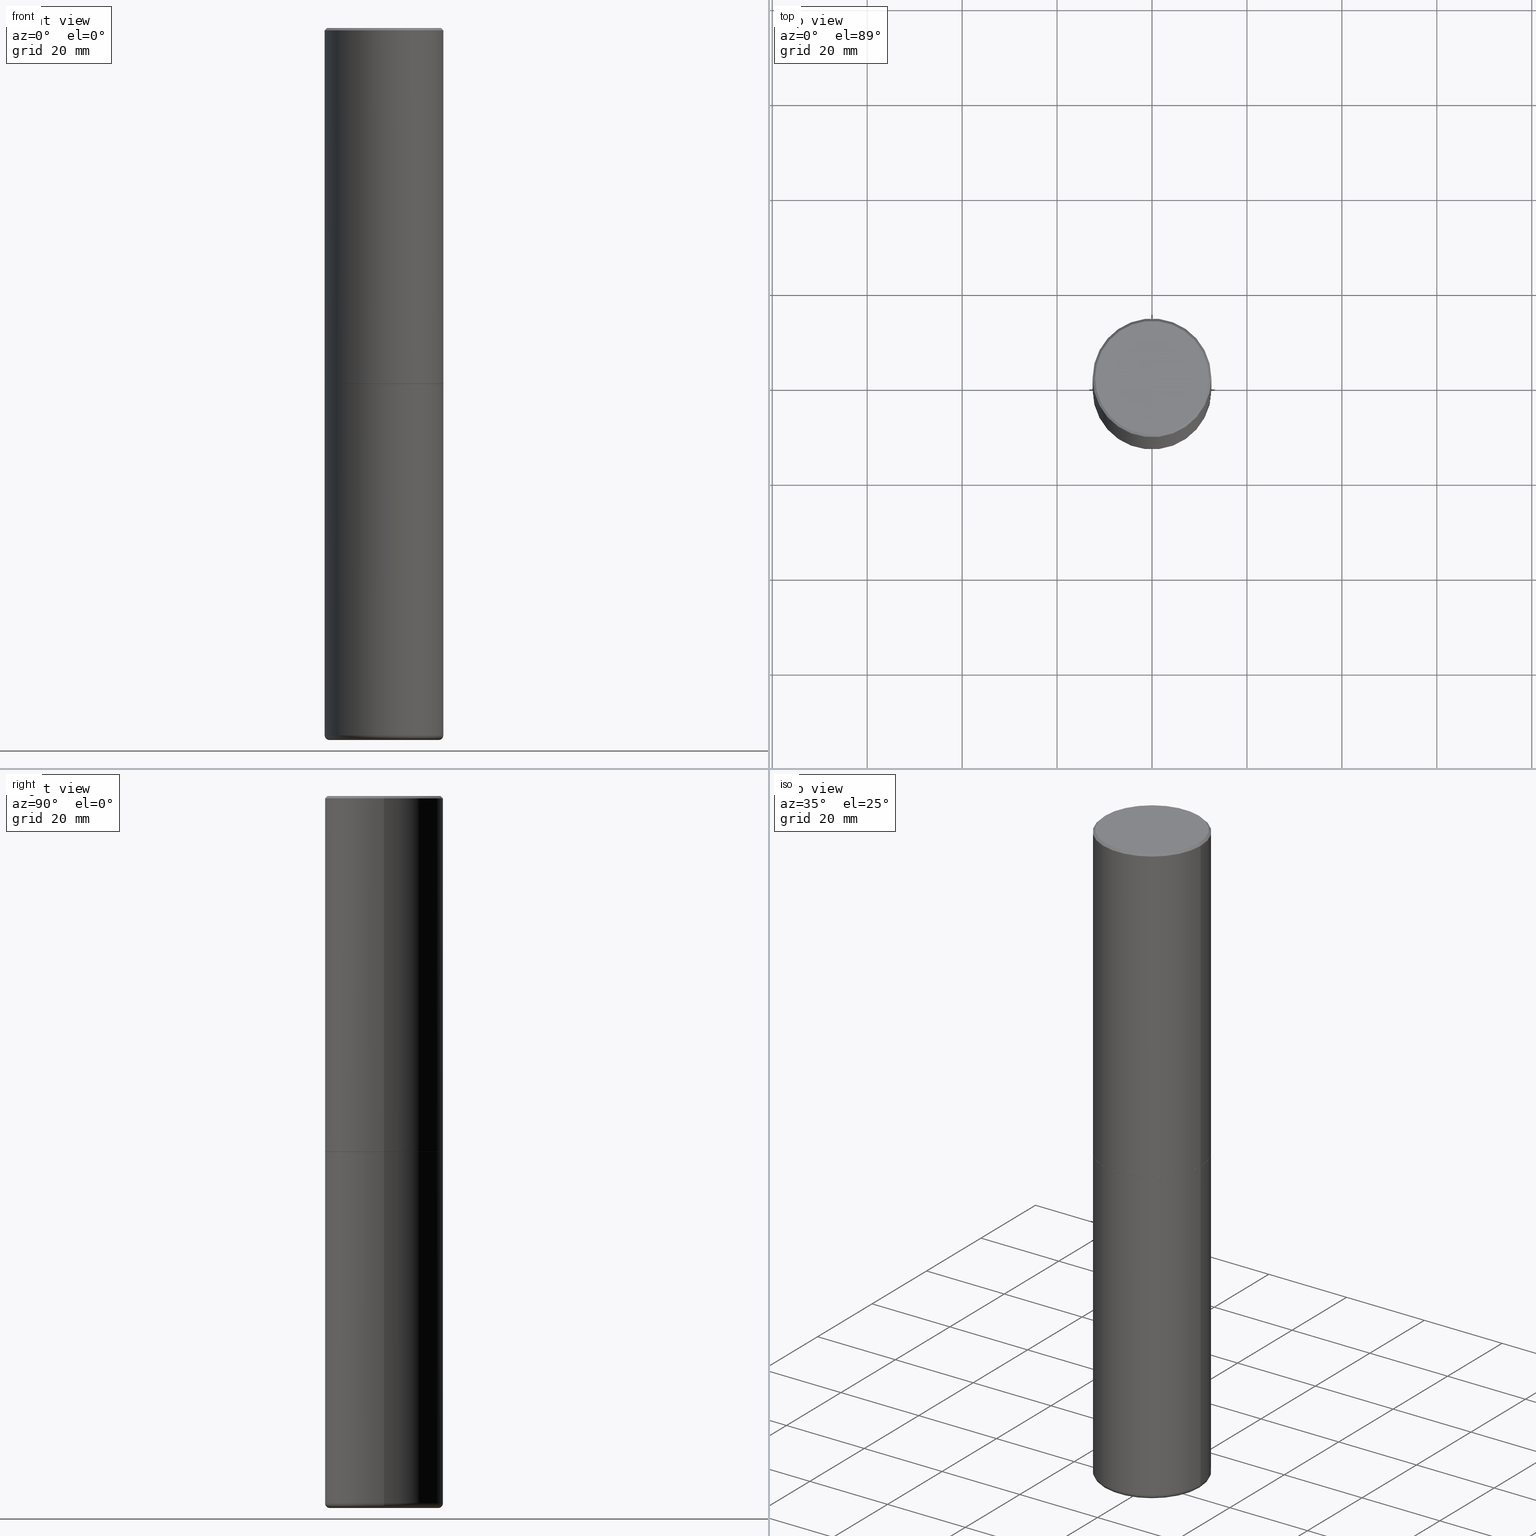
[diagram: canonical four-view strip — front | top / right | iso, engineering-drawing reading convention]
A machine part, canonical four-view strip (front | top / right | iso — engineering-drawing reading convention). The complete STEP part file that produces these views, byte-faithful:
ISO-10303-21;
HEADER;
FILE_DESCRIPTION (( 'STEP AP203' ),
    '1' );
FILE_NAME ('74887.STEP',
    '2024-05-02T19:27:21',
    ( '' ),
    ( '' ),
    'SwSTEP 2.0',
    'SolidWorks 2023',
    '' );
FILE_SCHEMA (( 'CONFIG_CONTROL_DESIGN' ));
ENDSEC;

DATA;
#1 = CARTESIAN_POINT ( 'NONE',  ( 7.220735744022852519E-29, -1.030929694920215502E-14, -2.952700000000000102 ) ) ;
#2 = SECURITY_CLASSIFICATION ( '', '', #336 ) ;
#3 = DIRECTION ( 'NONE',  ( -2.445468806185136597E-29, 3.491481338843145583E-15, 1.000000000000000000 ) ) ;
#4 = PERSON_AND_ORGANIZATION ( #216, #193 ) ;
#5 = DATE_AND_TIME ( #131, #159 ) ;
#6 = CARTESIAN_POINT ( 'NONE',  ( 0.4921500000000000319, -3.446223716380123138E-15, -0.02000000000000010797 ) ) ;
#7 = APPROVAL ( #357, 'UNSPECIFIED' ) ;
#8 = DIRECTION ( 'NONE',  ( 1.000000000000000000, -6.982962677686265922E-15, 0.000000000000000000 ) ) ;
#9 = DIRECTION ( 'NONE',  ( 0.000000000000000000, 0.000000000000000000, 1.000000000000000000 ) ) ;
#10 = CIRCLE ( 'NONE', #192, 0.4921500000000000319 ) ;
#11 = AXIS2_PLACEMENT_3D ( 'NONE', #286, #346, #257 ) ;
#12 = ADVANCED_FACE ( 'NONE', ( #318 ), #151, .T. ) ;
#13 = DATE_AND_TIME ( #269, #134 ) ;
#14 = LINE ( 'NONE', #284, #296 ) ;
#15 = CC_DESIGN_DATE_AND_TIME_ASSIGNMENT ( #5, #132, ( #366 ) ) ;
#16 = CYLINDRICAL_SURFACE ( 'NONE', #273, 0.4921500000000001984 ) ;
#17 = CONICAL_SURFACE ( 'NONE', #39, 0.4911499999999999755, 0.7853981633977213939 ) ;
#18 = DIRECTION ( 'NONE',  ( -2.445468806185136597E-29, 3.491481338843145583E-15, 1.000000000000000000 ) ) ;
#19 = APPROVAL_PERSON_ORGANIZATION ( #136, #291, #171 ) ;
#20 = CIRCLE ( 'NONE', #74, 0.03940000000000040692 ) ;
#21 = CALENDAR_DATE ( 2024, 2, 5 ) ;
#22 = CC_DESIGN_PERSON_AND_ORGANIZATION_ASSIGNMENT ( #393, #100, ( #211 ) ) ;
#23 = DIRECTION ( 'NONE',  ( 1.000000000000000000, -6.982962677686269077E-15, 0.000000000000000000 ) ) ;
#24 = ORIENTED_EDGE ( 'NONE', *, *, #162, .T. ) ;
#25 = CARTESIAN_POINT ( 'NONE',  ( 0.4527499999999999858, -2.364291503411023483E-14, -5.866100000000000314 ) ) ;
#26 = DIRECTION ( 'NONE',  ( 2.438088387897960049E-29, -3.491481338843145188E-15, -1.000000000000000000 ) ) ;
#27 = VERTEX_POINT ( 'NONE', #185 ) ;
#28 = ORIENTED_EDGE ( 'NONE', *, *, #80, .F. ) ;
#29 = AXIS2_PLACEMENT_3D ( 'NONE', #145, #119, #314 ) ;
#30 = AXIS2_PLACEMENT_3D ( 'NONE', #356, #294, #88 ) ;
#31 = DIRECTION ( 'NONE',  ( -2.445468806185136597E-29, 3.491481338843145583E-15, 1.000000000000000000 ) ) ;
#32 = DIRECTION ( 'NONE',  ( 2.438088387897960049E-29, -3.491481338843145188E-15, -1.000000000000000000 ) ) ;
#33 = VERTEX_POINT ( 'NONE', #6 ) ;
#34 = EDGE_CURVE ( 'NONE', #275, #89, #14, .T. ) ;
#35 = DIRECTION ( 'NONE',  ( -2.445468806185136597E-29, 3.491481338843145583E-15, 1.000000000000000000 ) ) ;
#36 = APPLICATION_CONTEXT ( 'configuration controlled 3d designs of mechanical parts and assemblies' ) ;
#37 = LINE ( 'NONE', #223, #174 ) ;
#38 = ORIENTED_EDGE ( 'NONE', *, *, #162, .F. ) ;
#39 = AXIS2_PLACEMENT_3D ( 'NONE', #59, #207, #53 ) ;
#40 = EDGE_CURVE ( 'NONE', #313, #27, #279, .T. ) ;
#41 = CARTESIAN_POINT ( 'NONE',  ( 3.297005828269569180E-15, 0.4721499999999997921, -1.507642001961476820E-15 ) ) ;
#42 = DIRECTION ( 'NONE',  ( -2.445468806185136597E-29, 3.491481338843145583E-15, 1.000000000000000000 ) ) ;
#43 = FACE_OUTER_BOUND ( 'NONE', #238, .T. ) ;
#44 = APPLICATION_CONTEXT ( 'configuration controlled 3d designs of mechanical parts and assemblies' ) ;
#45 = AXIS2_PLACEMENT_3D ( 'NONE', #146, #384, #91 ) ;
#46 = LOCAL_TIME ( 15, 27, 21.00000000000000000, #405 ) ;
#47 = EDGE_LOOP ( 'NONE', ( #316, #397 ) ) ;
#48 =( LENGTH_UNIT ( ) NAMED_UNIT ( * ) SI_UNIT ( $, .METRE. ) );
#49 = DIRECTION ( 'NONE',  ( 1.000000000000000000, -6.982962677686265133E-15, 0.000000000000000000 ) ) ;
#50 = COORDINATED_UNIVERSAL_TIME_OFFSET ( 5, 0, .BEHIND. ) ;
#51 = CARTESIAN_POINT ( 'NONE',  ( -0.4911499999999999755, -6.819466302516422338E-15, -2.952700000000000102 ) ) ;
#52 = ORIENTED_EDGE ( 'NONE', *, *, #147, .T. ) ;
#53 = DIRECTION ( 'NONE',  ( 1.000000000000000000, -6.982962677686268288E-15, 0.000000000000000000 ) ) ;
#54 = AXIS2_PLACEMENT_3D ( 'NONE', #118, #288, #285 ) ;
#55 = ORIENTED_EDGE ( 'NONE', *, *, #416, .F. ) ;
#56 = PERSON_AND_ORGANIZATION_ROLE ( 'creator' ) ;
#57 = LINE ( 'NONE', #179, #105 ) ;
#58 = ORIENTED_EDGE ( 'NONE', *, *, #270, .T. ) ;
#59 = CARTESIAN_POINT ( 'NONE',  ( 7.220735744022852519E-29, -1.030929694920215502E-14, -2.952700000000000102 ) ) ;
#60 = CARTESIAN_POINT ( 'NONE',  ( -0.4527499999999999858, -1.719320170906439193E-14, -5.905500000000000860 ) ) ;
#61 = EDGE_CURVE ( 'NONE', #406, #402, #10, .T. ) ;
#62 = DIRECTION ( 'NONE',  ( -2.445468806185136597E-29, 3.491481338843145583E-15, 1.000000000000000000 ) ) ;
#63 = AXIS2_PLACEMENT_3D ( 'NONE', #154, #414, #378 ) ;
#64 = CIRCLE ( 'NONE', #78, 0.4911499999999999755 ) ;
#65 = FACE_OUTER_BOUND ( 'NONE', #353, .T. ) ;
#66 = DIMENSIONAL_EXPONENTS ( 1.000000000000000000, 0.000000000000000000, 0.000000000000000000, 0.000000000000000000, 0.000000000000000000, 0.000000000000000000, 0.000000000000000000 ) ;
#67 = DIRECTION ( 'NONE',  ( -2.445468806185136597E-29, 3.491481338843145583E-15, 1.000000000000000000 ) ) ;
#68 = CARTESIAN_POINT ( 'NONE',  ( 7.220735744022852519E-29, -1.030929694920215502E-14, -2.952700000000000102 ) ) ;
#69 = ORIENTED_EDGE ( 'NONE', *, *, #34, .T. ) ;
#70 = AXIS2_PLACEMENT_3D ( 'NONE', #68, #26, #317 ) ;
#71 = PERSON_AND_ORGANIZATION_ROLE ( 'creator' ) ;
#72 = CARTESIAN_POINT ( 'NONE',  ( -0.4921499999999999764, 3.496936074043332897E-15, -2.420853904668951509E-29 ) ) ;
#73 = CIRCLE ( 'NONE', #228, 0.4921500000000000319 ) ;
#74 = AXIS2_PLACEMENT_3D ( 'NONE', #385, #92, #217 ) ;
#75 = DIRECTION ( 'NONE',  ( -2.445468806185136597E-29, 3.491481338843145583E-15, 1.000000000000000000 ) ) ;
#76 = DATE_TIME_ROLE ( 'classification_date' ) ;
#77 = CC_DESIGN_PERSON_AND_ORGANIZATION_ASSIGNMENT ( #4, #71, ( #366 ) ) ;
#78 = AXIS2_PLACEMENT_3D ( 'NONE', #330, #75, #168 ) ;
#79 = ORIENTED_EDGE ( 'NONE', *, *, #339, .F. ) ;
#80 = EDGE_CURVE ( 'NONE', #244, #391, #343, .T. ) ;
#81 = ORIENTED_EDGE ( 'NONE', *, *, #96, .F. ) ;
#82 = FACE_OUTER_BOUND ( 'NONE', #210, .T. ) ;
#83 = PERSON_AND_ORGANIZATION_ROLE ( 'classification_officer' ) ;
#84 = CARTESIAN_POINT ( 'NONE',  ( 0.4921500000000003094, -1.374247054968661252E-14, -2.951700000000000212 ) ) ;
#85 = PERSON_AND_ORGANIZATION ( #216, #193 ) ;
#86 = CIRCLE ( 'NONE', #198, 0.4921499999999999764 ) ;
#87 = FACE_OUTER_BOUND ( 'NONE', #383, .T. ) ;
#88 = DIRECTION ( 'NONE',  ( -1.000000000000000000, 6.982962677686265922E-15, -4.876176775795935793E-29 ) ) ;
#89 = VERTEX_POINT ( 'NONE', #84 ) ;
#90 = ORIENTED_EDGE ( 'NONE', *, *, #167, .T. ) ;
#91 = DIRECTION ( 'NONE',  ( 1.000000000000000000, -6.982962677686268288E-15, 4.883557194083113462E-29 ) ) ;
#92 = DIRECTION ( 'NONE',  ( 7.105427357601001859E-15, 1.000000000000000000, -3.491481338843145583E-15 ) ) ;
#93 = DIRECTION ( 'NONE',  ( -2.445468806185136877E-29, 3.491481338843145188E-15, 1.000000000000000000 ) ) ;
#94 = CIRCLE ( 'NONE', #358, 0.03940000000000040692 ) ;
#95 = CARTESIAN_POINT ( 'NONE',  ( -0.4911499999999999755, -6.814167848168199148E-15, -2.952700000000000102 ) ) ;
#96 = EDGE_CURVE ( 'NONE', #406, #250, #239, .T. ) ;
#97 = PLANE ( 'NONE',  #30 ) ;
#98 = ORIENTED_EDGE ( 'NONE', *, *, #320, .T. ) ;
#99 = VECTOR ( 'NONE', #401, 39.37007874015748143 ) ;
#100 = PERSON_AND_ORGANIZATION_ROLE ( 'design_owner' ) ;
#101 = EDGE_CURVE ( 'NONE', #275, #313, #365, .T. ) ;
#102 = APPROVAL_ROLE ( '' ) ;
#103 = CC_DESIGN_PERSON_AND_ORGANIZATION_ASSIGNMENT ( #143, #56, ( #372 ) ) ;
#104 =( CONVERSION_BASED_UNIT ( 'INCH', #362 ) LENGTH_UNIT ( ) NAMED_UNIT ( #66 ) );
#105 = VECTOR ( 'NONE', #311, 39.37007874015748143 ) ;
#106 = ORIENTED_EDGE ( 'NONE', *, *, #277, .F. ) ;
#107 = ADVANCED_FACE ( 'NONE', ( #220 ), #16, .T. ) ;
#108 = EDGE_LOOP ( 'NONE', ( #309, #241, #248, #376 ) ) ;
#109 = APPROVAL_STATUS ( 'not_yet_approved' ) ;
#110 = DIRECTION ( 'NONE',  ( -2.445468806185136597E-29, 3.491481338843145583E-15, 1.000000000000000000 ) ) ;
#111 = APPROVAL_DATE_TIME ( #299, #7 ) ;
#112 = CARTESIAN_POINT ( 'NONE',  ( 1.444171603492632494E-28, -2.061894304653819828E-14, -5.905500000000000860 ) ) ;
#113 = ORIENTED_EDGE ( 'NONE', *, *, #339, .T. ) ;
#114 = CIRCLE ( 'NONE', #11, 0.4921500000000003094 ) ;
#115 = ORIENTED_EDGE ( 'NONE', *, *, #61, .F. ) ;
#116 = APPROVAL_DATE_TIME ( #340, #144 ) ;
#117 = ORIENTED_EDGE ( 'NONE', *, *, #197, .T. ) ;
#118 = CARTESIAN_POINT ( 'NONE',  ( 4.890937612370299433E-31, -6.982962677686328587E-17, -0.02000000000000010797 ) ) ;
#119 = DIRECTION ( 'NONE',  ( -2.445468806185136597E-29, 3.491481338843145583E-15, 1.000000000000000000 ) ) ;
#120 = DIRECTION ( 'NONE',  ( -2.445468806185136877E-29, 3.491481338843145188E-15, 1.000000000000000000 ) ) ;
#121 = ORIENTED_EDGE ( 'NONE', *, *, #188, .F. ) ;
#122 = CONICAL_SURFACE ( 'NONE', #177, 0.4911499999999999755, 0.7853981633977213939 ) ;
#123 = CARTESIAN_POINT ( 'NONE',  ( 1.444171603492632494E-28, -2.061894304653819828E-14, -5.905500000000000860 ) ) ;
#124 = DIRECTION ( 'NONE',  ( -1.000000000000000000, 6.982962677686265922E-15, -4.876176775795935793E-29 ) ) ;
#125 = CARTESIAN_POINT ( 'NONE',  ( 0.000000000000000000, 0.000000000000000000, 0.000000000000000000 ) ) ;
#126 = CARTESIAN_POINT ( 'NONE',  ( 0.4921499999999999764, -1.374596203102545079E-14, -2.952700000000000102 ) ) ;
#127 = FACE_OUTER_BOUND ( 'NONE', #398, .T. ) ;
#128 = CLOSED_SHELL ( 'NONE', ( #142, #107, #400, #298, #12, #301, #396, #247 ) ) ;
#129 = DIRECTION ( 'NONE',  ( 1.000000000000000000, -6.982962677686265922E-15, 0.000000000000000000 ) ) ;
#130 = ORIENTED_EDGE ( 'NONE', *, *, #133, .T. ) ;
#131 = CALENDAR_DATE ( 2024, 2, 5 ) ;
#132 = DATE_TIME_ROLE ( 'creation_date' ) ;
#133 = EDGE_CURVE ( 'NONE', #402, #149, #153, .T. ) ;
#134 = LOCAL_TIME ( 15, 27, 21.00000000000000000, #135 ) ;
#135 = COORDINATED_UNIVERSAL_TIME_OFFSET ( 5, 0, .BEHIND. ) ;
#136 = PERSON_AND_ORGANIZATION ( #216, #193 ) ;
#137 = APPLICATION_PROTOCOL_DEFINITION ( 'international standard', 'config_control_design', 1994, #44 ) ;
#138 = ADVANCED_FACE ( 'NONE', ( #82 ), #394, .T. ) ;
#139 = CIRCLE ( 'NONE', #251, 0.4921499999999999764 ) ;
#140 = DIRECTION ( 'NONE',  ( 1.000000000000000000, -6.982962677686268288E-15, 0.000000000000000000 ) ) ;
#141 = ADVANCED_BREP_SHAPE_REPRESENTATION ( '74887', ( #371, #369, #381 ), #359 ) ;
#142 = ADVANCED_FACE ( 'NONE', ( #87 ), #17, .T. ) ;
#143 = PERSON_AND_ORGANIZATION ( #216, #193 ) ;
#144 = APPROVAL ( #109, 'UNSPECIFIED' ) ;
#145 = CARTESIAN_POINT ( 'NONE',  ( 1.434536456396262923E-28, -2.048137868178777591E-14, -5.866100000000000314 ) ) ;
#146 = CARTESIAN_POINT ( 'NONE',  ( 1.434536456396262923E-28, -2.048137868178777591E-14, -5.866100000000000314 ) ) ;
#147 = EDGE_CURVE ( 'NONE', #244, #406, #94, .T. ) ;
#148 = CARTESIAN_POINT ( 'NONE',  ( 4.890937612370299433E-31, -6.982962677686328587E-17, -0.02000000000000010797 ) ) ;
#149 = VERTEX_POINT ( 'NONE', #249 ) ;
#150 = CIRCLE ( 'NONE', #158, 0.4527499999999999858 ) ;
#151 = CYLINDRICAL_SURFACE ( 'NONE', #387, 0.4921500000000001984 ) ;
#152 = CC_DESIGN_SECURITY_CLASSIFICATION ( #2, ( #372 ) ) ;
#153 = LINE ( 'NONE', #72, #380 ) ;
#154 = CARTESIAN_POINT ( 'NONE',  ( 4.890937612370299433E-31, -6.982962677686328587E-17, -0.02000000000000010797 ) ) ;
#155 = FACE_OUTER_BOUND ( 'NONE', #108, .T. ) ;
#156 = CARTESIAN_POINT ( 'NONE',  ( 0.4911499999999999755, -1.373897906834776478E-14, -2.952700000000000102 ) ) ;
#157 = FACE_OUTER_BOUND ( 'NONE', #213, .T. ) ;
#158 = AXIS2_PLACEMENT_3D ( 'NONE', #123, #178, #307 ) ;
#159 = LOCAL_TIME ( 15, 27, 21.00000000000000000, #195 ) ;
#160 = DIRECTION ( 'NONE',  ( -2.445468806185136597E-29, 3.491481338843145583E-15, 1.000000000000000000 ) ) ;
#161 = PLANE ( 'NONE',  #165 ) ;
#162 = EDGE_CURVE ( 'NONE', #391, #244, #150, .T. ) ;
#163 = DIRECTION ( 'NONE',  ( 1.000000000000000000, -6.982962677686265133E-15, 0.000000000000000000 ) ) ;
#164 = VECTOR ( 'NONE', #341, 39.37007874015748143 ) ;
#165 = AXIS2_PLACEMENT_3D ( 'NONE', #367, #392, #233 ) ;
#166 =( NAMED_UNIT ( * ) PLANE_ANGLE_UNIT ( ) SI_UNIT ( $, .RADIAN. ) );
#167 = EDGE_CURVE ( 'NONE', #281, #33, #235, .T. ) ;
#168 = DIRECTION ( 'NONE',  ( 1.000000000000000000, -6.982962677686268288E-15, 0.000000000000000000 ) ) ;
#169 = ORIENTED_EDGE ( 'NONE', *, *, #197, .F. ) ;
#170 = DIRECTION ( 'NONE',  ( -2.445468806185136877E-29, 3.491481338843145188E-15, 1.000000000000000000 ) ) ;
#171 = APPROVAL_ROLE ( '' ) ;
#172 = CC_DESIGN_PERSON_AND_ORGANIZATION_ASSIGNMENT ( #246, #83, ( #2 ) ) ;
#173 = PRODUCT_DEFINITION_SHAPE ( 'NONE', 'NONE',  #366 ) ;
#174 = VECTOR ( 'NONE', #93, 39.37007874015748143 ) ;
#175 = ADVANCED_FACE ( 'NONE', ( #256 ), #293, .T. ) ;
#176 = AXIS2_PLACEMENT_3D ( 'NONE', #302, #18, #140 ) ;
#177 = AXIS2_PLACEMENT_3D ( 'NONE', #292, #3, #187 ) ;
#178 = DIRECTION ( 'NONE',  ( -2.445468806185136597E-29, 3.491481338843145583E-15, 1.000000000000000000 ) ) ;
#179 = CARTESIAN_POINT ( 'NONE',  ( 0.4921500000000000319, -3.446223716380123138E-15, -0.02000000000000010797 ) ) ;
#180 = EDGE_LOOP ( 'NONE', ( #334, #280, #69, #218 ) ) ;
#181 = CARTESIAN_POINT ( 'NONE',  ( 7.220735744022852519E-29, -1.030929694920215502E-14, -2.952700000000000102 ) ) ;
#182 = CYLINDRICAL_SURFACE ( 'NONE', #404, 0.4921499999999999764 ) ;
#183 = ORIENTED_EDGE ( 'NONE', *, *, #212, .F. ) ;
#184 = AXIS2_PLACEMENT_3D ( 'NONE', #347, #160, #417 ) ;
#185 = CARTESIAN_POINT ( 'NONE',  ( -0.4921500000000003094, -1.690881473276752982E-15, -2.951700000000000212 ) ) ;
#186 = APPROVAL_PERSON_ORGANIZATION ( #226, #7, #102 ) ;
#187 = DIRECTION ( 'NONE',  ( 1.000000000000000000, -6.982962677686268288E-15, 0.000000000000000000 ) ) ;
#188 = EDGE_CURVE ( 'NONE', #250, #149, #139, .T. ) ;
#189 = FACE_OUTER_BOUND ( 'NONE', #338, .T. ) ;
#190 = DIRECTION ( 'NONE',  ( 1.000000000000000000, -6.982962677686265922E-15, 4.876176775795935793E-29 ) ) ;
#191 = ORIENTED_EDGE ( 'NONE', *, *, #379, .T. ) ;
#192 = AXIS2_PLACEMENT_3D ( 'NONE', #333, #206, #49 ) ;
#193 = ORGANIZATION ( 'UNSPECIFIED', 'UNSPECIFIED', '' ) ;
#194 = CARTESIAN_POINT ( 'NONE',  ( 0.4921500000000002539, -2.391804376361107326E-14, -5.866100000000000314 ) ) ;
#195 = COORDINATED_UNIVERSAL_TIME_OFFSET ( 5, 0, .BEHIND. ) ;
#196 = CALENDAR_DATE ( 2024, 2, 5 ) ;
#197 = EDGE_CURVE ( 'NONE', #33, #281, #262, .T. ) ;
#198 = AXIS2_PLACEMENT_3D ( 'NONE', #1, #266, #8 ) ;
#199 = CC_DESIGN_APPROVAL ( #291, ( #366 ) ) ;
#200 = CARTESIAN_POINT ( 'NONE',  ( -0.4921500000000002539, -1.698444260774444222E-14, -5.866100000000000314 ) ) ;
#201 = ORIENTED_EDGE ( 'NONE', *, *, #40, .T. ) ;
#202 = DIRECTION ( 'NONE',  ( -1.000000000000000000, 6.982962677686265922E-15, 0.000000000000000000 ) ) ;
#203 = SHAPE_DEFINITION_REPRESENTATION ( #173, #141 ) ;
#204 = AXIS2_PLACEMENT_3D ( 'NONE', #415, #35, #129 ) ;
#205 = EDGE_CURVE ( 'NONE', #149, #250, #86, .T. ) ;
#206 = DIRECTION ( 'NONE',  ( -2.445468806185136597E-29, 3.491481338843145583E-15, 1.000000000000000000 ) ) ;
#207 = DIRECTION ( 'NONE',  ( -2.445468806185136597E-29, 3.491481338843145583E-15, 1.000000000000000000 ) ) ;
#208 = APPROVAL_ROLE ( '' ) ;
#209 = CARTESIAN_POINT ( 'NONE',  ( 0.4921499999999999764, -3.436665081823295777E-15, 2.399810400207969603E-29 ) ) ;
#210 = EDGE_LOOP ( 'NONE', ( #255, #191, #115, #323 ) ) ;
#211 = PRODUCT ( '74887', '74887', '', ( #272 ) ) ;
#212 = EDGE_CURVE ( 'NONE', #412, #281, #364, .T. ) ;
#213 = EDGE_LOOP ( 'NONE', ( #375, #130, #121, #81 ) ) ;
#214 = CARTESIAN_POINT ( 'NONE',  ( 0.000000000000000000, 0.000000000000000000, 0.000000000000000000 ) ) ;
#215 = ORIENTED_EDGE ( 'NONE', *, *, #374, .T. ) ;
#216 = PERSON ( 'UNSPECIFIED', 'UNSPECIFIED', 'UNSPECIFIED', ('UNSPECIFIED'), ('UNSPECIFIED'), ('UNSPECIFIED') ) ;
#217 = DIRECTION ( 'NONE',  ( -1.000000000000000000, 7.105427357601001859E-15, 0.000000000000000000 ) ) ;
#218 = ORIENTED_EDGE ( 'NONE', *, *, #320, .F. ) ;
#219 = DIRECTION ( 'NONE',  ( 1.000000000000000000, -6.982962677686265922E-15, 4.882029041999364017E-29 ) ) ;
#220 = FACE_OUTER_BOUND ( 'NONE', #368, .T. ) ;
#221 = CONICAL_SURFACE ( 'NONE', #329, 0.4921500000000000319, 0.7853981633974452814 ) ;
#222 = LOCAL_TIME ( 15, 27, 21.00000000000000000, #326 ) ;
#223 = CARTESIAN_POINT ( 'NONE',  ( -0.4921500000000001984, 3.496936074043334475E-15, -2.420853904668952630E-29 ) ) ;
#224 = LINE ( 'NONE', #260, #297 ) ;
#225 = EDGE_CURVE ( 'NONE', #402, #406, #73, .T. ) ;
#226 = PERSON_AND_ORGANIZATION ( #216, #193 ) ;
#227 = DIRECTION ( 'NONE',  ( -0.7071067811865453523, 2.468850131082234184E-15, -0.7071067811865496822 ) ) ;
#228 = AXIS2_PLACEMENT_3D ( 'NONE', #303, #335, #163 ) ;
#229 = LOCAL_TIME ( 15, 27, 21.00000000000000000, #50 ) ;
#231 = APPROVAL_DATE_TIME ( #13, #291 ) ;
#230 = CC_DESIGN_PERSON_AND_ORGANIZATION_ASSIGNMENT ( #377, #337, ( #372 ) ) ;
#232 = UNCERTAINTY_MEASURE_WITH_UNIT (LENGTH_MEASURE( 1.000000000000000082E-05 ), #104, 'distance_accuracy_value', 'NONE');
#233 = DIRECTION ( 'NONE',  ( 1.000000000000000000, -6.982962677686265922E-15, 4.876176775795935793E-29 ) ) ;
#234 = CC_DESIGN_DATE_AND_TIME_ASSIGNMENT ( #373, #76, ( #2 ) ) ;
#235 = CIRCLE ( 'NONE', #54, 0.4921500000000000319 ) ;
#236 = ORIENTED_EDGE ( 'NONE', *, *, #354, .F. ) ;
#237 = CARTESIAN_POINT ( 'NONE',  ( -0.4721499999999997921, 3.331920641658001618E-15, 2.817218243466039531E-16 ) ) ;
#238 = EDGE_LOOP ( 'NONE', ( #236, #215, #117, #183 ) ) ;
#239 = LINE ( 'NONE', #209, #164 ) ;
#240 = ADVANCED_FACE ( 'NONE', ( #322 ), #315, .F. ) ;
#241 = ORIENTED_EDGE ( 'NONE', *, *, #225, .T. ) ;
#242 = AXIS2_PLACEMENT_3D ( 'NONE', #112, #110, #23 ) ;
#243 = DIRECTION ( 'NONE',  ( 0.7071067811867406405, -2.468850131084279700E-15, 0.7071067811863543939 ) ) ;
#244 = VERTEX_POINT ( 'NONE', #352 ) ;
#245 = ORIENTED_EDGE ( 'NONE', *, *, #277, .T. ) ;
#246 = PERSON_AND_ORGANIZATION ( #216, #193 ) ;
#247 = ADVANCED_FACE ( 'NONE', ( #65 ), #411, .F. ) ;
#248 = ORIENTED_EDGE ( 'NONE', *, *, #96, .T. ) ;
#249 = CARTESIAN_POINT ( 'NONE',  ( -0.4921499999999999764, -1.189840174145163414E-14, -2.952700000000000102 ) ) ;
#250 = VERTEX_POINT ( 'NONE', #126 ) ;
#251 = AXIS2_PLACEMENT_3D ( 'NONE', #181, #31, #407 ) ;
#252 = CC_DESIGN_APPROVAL ( #144, ( #2 ) ) ;
#253 = CYLINDRICAL_SURFACE ( 'NONE', #184, 0.4921499999999999764 ) ;
#254 = ORIENTED_EDGE ( 'NONE', *, *, #34, .F. ) ;
#255 = ORIENTED_EDGE ( 'NONE', *, *, #80, .T. ) ;
#256 = FACE_OUTER_BOUND ( 'NONE', #349, .T. ) ;
#257 = DIRECTION ( 'NONE',  ( 1.000000000000000000, -6.982962677686265922E-15, 0.000000000000000000 ) ) ;
#258 = DIRECTION ( 'NONE',  ( 1.000000000000000000, -6.982962677686266711E-15, 4.876176775795935232E-29 ) ) ;
#259 = DIRECTION ( 'NONE',  ( -6.982962677686266711E-15, -1.000000000000000000, 3.491481338843145583E-15 ) ) ;
#260 = CARTESIAN_POINT ( 'NONE',  ( 0.4921500000000001984, -3.436665081823297354E-15, 2.399810400207970443E-29 ) ) ;
#261 = CARTESIAN_POINT ( 'NONE',  ( -6.889419334612450925E-45, 9.836264924510951028E-31, 2.817218243466271259E-16 ) ) ;
#262 = CIRCLE ( 'NONE', #63, 0.4921500000000000319 ) ;
#263 = ORIENTED_EDGE ( 'NONE', *, *, #225, .F. ) ;
#264 = CARTESIAN_POINT ( 'NONE',  ( 0.4721499999999997921, -3.342703923013974974E-15, 2.817218243466503973E-16 ) ) ;
#265 = FACE_OUTER_BOUND ( 'NONE', #319, .T. ) ;
#266 = DIRECTION ( 'NONE',  ( -2.445468806185136597E-29, 3.491481338843145583E-15, 1.000000000000000000 ) ) ;
#267 = DIRECTION ( 'NONE',  ( 1.000000000000000000, 0.000000000000000000, 0.000000000000000000 ) ) ;
#268 = CONICAL_SURFACE ( 'NONE', #305, 0.4921500000000000319, 0.7853981633974452814 ) ;
#269 = CALENDAR_DATE ( 2024, 2, 5 ) ;
#270 = EDGE_CURVE ( 'NONE', #412, #274, #282, .T. ) ;
#271 = CARTESIAN_POINT ( 'NONE',  ( 4.890937612370299433E-31, -6.982962677686328587E-17, -0.02000000000000010797 ) ) ;
#272 = MECHANICAL_CONTEXT ( 'NONE', #44, 'mechanical' ) ;
#273 = AXIS2_PLACEMENT_3D ( 'NONE', #125, #42, #399 ) ;
#274 = VERTEX_POINT ( 'NONE', #264 ) ;
#275 = VERTEX_POINT ( 'NONE', #156 ) ;
#276 = ORIENTED_EDGE ( 'NONE', *, *, #101, .T. ) ;
#277 = EDGE_CURVE ( 'NONE', #27, #281, #37, .T. ) ;
#278 = DESIGN_CONTEXT ( 'detailed design', #36, 'design' ) ;
#279 = LINE ( 'NONE', #51, #99 ) ;
#280 = ORIENTED_EDGE ( 'NONE', *, *, #416, .T. ) ;
#281 = VERTEX_POINT ( 'NONE', #390 ) ;
#282 = CIRCLE ( 'NONE', #304, 0.4721499999999997921 ) ;
#283 = ADVANCED_FACE ( 'NONE', ( #157 ), #253, .T. ) ;
#284 = CARTESIAN_POINT ( 'NONE',  ( 0.4911499999999999755, -1.373897906834776478E-14, -2.952700000000000102 ) ) ;
#285 = DIRECTION ( 'NONE',  ( 1.000000000000000000, -6.982962677686265922E-15, 0.000000000000000000 ) ) ;
#286 = CARTESIAN_POINT ( 'NONE',  ( 7.218290275216666916E-29, -1.030580546786331359E-14, -2.951700000000000212 ) ) ;
#287 = ORIENTED_EDGE ( 'NONE', *, *, #374, .F. ) ;
#288 = DIRECTION ( 'NONE',  ( -2.445468806185136597E-29, 3.491481338843145583E-15, 1.000000000000000000 ) ) ;
#289 = DIRECTION ( 'NONE',  ( -2.445468806185136597E-29, 3.491481338843145583E-15, 1.000000000000000000 ) ) ;
#290 = DIRECTION ( 'NONE',  ( -1.000000000000000000, 6.982962677686265922E-15, 0.000000000000000000 ) ) ;
#291 = APPROVAL ( #332, 'UNSPECIFIED' ) ;
#292 = CARTESIAN_POINT ( 'NONE',  ( 7.220735744022852519E-29, -1.030929694920215502E-14, -2.952700000000000102 ) ) ;
#293 = TOROIDAL_SURFACE ( 'NONE', #45, 0.4527499999999999858, 0.03940000000000037222 ) ;
#294 = DIRECTION ( 'NONE',  ( 2.438088387897960049E-29, -3.491481338843145188E-15, -1.000000000000000000 ) ) ;
#295 = CARTESIAN_POINT ( 'NONE',  ( 0.000000000000000000, 0.000000000000000000, 0.000000000000000000 ) ) ;
#296 = VECTOR ( 'NONE', #243, 39.37007874015748143 ) ;
#297 = VECTOR ( 'NONE', #120, 39.37007874015748143 ) ;
#298 = ADVANCED_FACE ( 'NONE', ( #189 ), #221, .T. ) ;
#299 = DATE_AND_TIME ( #196, #222 ) ;
#300 =( NAMED_UNIT ( * ) SI_UNIT ( $, .STERADIAN. ) SOLID_ANGLE_UNIT ( ) );
#301 = ADVANCED_FACE ( 'NONE', ( #389 ), #122, .T. ) ;
#302 = CARTESIAN_POINT ( 'NONE',  ( 7.220735744022852519E-29, -1.030929694920215502E-14, -2.952700000000000102 ) ) ;
#303 = CARTESIAN_POINT ( 'NONE',  ( 1.434536456396262923E-28, -2.048137868178777591E-14, -5.866100000000000314 ) ) ;
#304 = AXIS2_PLACEMENT_3D ( 'NONE', #382, #67, #321 ) ;
#305 = AXIS2_PLACEMENT_3D ( 'NONE', #271, #363, #202 ) ;
#306 = ADVANCED_FACE ( 'NONE', ( #155 ), #182, .T. ) ;
#307 = DIRECTION ( 'NONE',  ( 1.000000000000000000, -6.982962677686269077E-15, 0.000000000000000000 ) ) ;
#308 = CC_DESIGN_APPROVAL ( #7, ( #372 ) ) ;
#309 = ORIENTED_EDGE ( 'NONE', *, *, #133, .F. ) ;
#310 = ORIENTED_EDGE ( 'NONE', *, *, #270, .F. ) ;
#311 = DIRECTION ( 'NONE',  ( 0.7071067811865453523, -7.319954787623248157E-15, -0.7071067811865496822 ) ) ;
#312 = ORIENTED_EDGE ( 'NONE', *, *, #379, .F. ) ;
#313 = VERTEX_POINT ( 'NONE', #95 ) ;
#314 = DIRECTION ( 'NONE',  ( 1.000000000000000000, -6.982962677686268288E-15, 4.883557194083113462E-29 ) ) ;
#315 = PLANE ( 'NONE',  #70 ) ;
#316 = ORIENTED_EDGE ( 'NONE', *, *, #188, .T. ) ;
#317 = DIRECTION ( 'NONE',  ( -1.000000000000000000, 6.982962677686265922E-15, -4.876176775795935793E-29 ) ) ;
#318 = FACE_OUTER_BOUND ( 'NONE', #403, .T. ) ;
#319 = EDGE_LOOP ( 'NONE', ( #342, #55 ) ) ;
#320 = EDGE_CURVE ( 'NONE', #27, #89, #114, .T. ) ;
#321 = DIRECTION ( 'NONE',  ( 1.000000000000000000, -6.982962677686265922E-15, 4.882029041999364017E-29 ) ) ;
#322 = FACE_OUTER_BOUND ( 'NONE', #47, .T. ) ;
#323 = ORIENTED_EDGE ( 'NONE', *, *, #147, .F. ) ;
#324 = AXIS2_PLACEMENT_3D ( 'NONE', #41, #32, #124 ) ;
#325 = CIRCLE ( 'NONE', #388, 0.4721499999999997921 ) ;
#326 = COORDINATED_UNIVERSAL_TIME_OFFSET ( 5, 0, .BEHIND. ) ;
#327 = EDGE_CURVE ( 'NONE', #89, #33, #224, .T. ) ;
#328 = PRODUCT_RELATED_PRODUCT_CATEGORY ( 'detail', '', ( #211 ) ) ;
#329 = AXIS2_PLACEMENT_3D ( 'NONE', #148, #355, #290 ) ;
#330 = CARTESIAN_POINT ( 'NONE',  ( 7.220735744022852519E-29, -1.030929694920215502E-14, -2.952700000000000102 ) ) ;
#331 = ORIENTED_EDGE ( 'NONE', *, *, #354, .T. ) ;
#332 = APPROVAL_STATUS ( 'not_yet_approved' ) ;
#333 = CARTESIAN_POINT ( 'NONE',  ( 1.434536456396262923E-28, -2.048137868178777591E-14, -5.866100000000000314 ) ) ;
#334 = ORIENTED_EDGE ( 'NONE', *, *, #40, .F. ) ;
#335 = DIRECTION ( 'NONE',  ( -2.445468806185136597E-29, 3.491481338843145583E-15, 1.000000000000000000 ) ) ;
#336 = SECURITY_CLASSIFICATION_LEVEL ( 'unclassified' ) ;
#337 = PERSON_AND_ORGANIZATION_ROLE ( 'design_supplier' ) ;
#338 = EDGE_LOOP ( 'NONE', ( #287, #310, #370, #90 ) ) ;
#339 = EDGE_CURVE ( 'NONE', #89, #27, #351, .T. ) ;
#340 = DATE_AND_TIME ( #344, #229 ) ;
#341 = DIRECTION ( 'NONE',  ( -2.445468806185136877E-29, 3.491481338843145188E-15, 1.000000000000000000 ) ) ;
#342 = ORIENTED_EDGE ( 'NONE', *, *, #101, .F. ) ;
#343 = CIRCLE ( 'NONE', #242, 0.4527499999999999858 ) ;
#344 = CALENDAR_DATE ( 2024, 2, 5 ) ;
#345 = ORIENTED_EDGE ( 'NONE', *, *, #327, .T. ) ;
#346 = DIRECTION ( 'NONE',  ( -2.445468806185136597E-29, 3.491481338843145583E-15, 1.000000000000000000 ) ) ;
#347 = CARTESIAN_POINT ( 'NONE',  ( 0.000000000000000000, 0.000000000000000000, 0.000000000000000000 ) ) ;
#348 = ORIENTED_EDGE ( 'NONE', *, *, #167, .F. ) ;
#349 = EDGE_LOOP ( 'NONE', ( #312, #24, #52, #263 ) ) ;
#350 = CLOSED_SHELL ( 'NONE', ( #283, #138, #240, #306, #175, #360 ) ) ;
#351 = CIRCLE ( 'NONE', #204, 0.4921500000000003094 ) ;
#352 = CARTESIAN_POINT ( 'NONE',  ( 0.4527499999999999858, -2.378047939886065405E-14, -5.905500000000000860 ) ) ;
#353 = EDGE_LOOP ( 'NONE', ( #58, #331 ) ) ;
#354 = EDGE_CURVE ( 'NONE', #274, #412, #325, .T. ) ;
#355 = DIRECTION ( 'NONE',  ( 2.445468806185136597E-29, -3.491481338843145583E-15, -1.000000000000000000 ) ) ;
#356 = CARTESIAN_POINT ( 'NONE',  ( 4.488705641877112035E-29, -3.487222041955580978E-14, -5.905500000000000860 ) ) ;
#357 = APPROVAL_STATUS ( 'not_yet_approved' ) ;
#358 = AXIS2_PLACEMENT_3D ( 'NONE', #25, #259, #410 ) ;
#359 =( GEOMETRIC_REPRESENTATION_CONTEXT ( 3 ) GLOBAL_UNCERTAINTY_ASSIGNED_CONTEXT ( ( #232 ) ) GLOBAL_UNIT_ASSIGNED_CONTEXT ( ( #104, #166, #300 ) ) REPRESENTATION_CONTEXT ( 'NONE', 'WORKASPACE' ) );
#360 = ADVANCED_FACE ( 'NONE', ( #127 ), #97, .T. ) ;
#361 = APPLICATION_PROTOCOL_DEFINITION ( 'international standard', 'config_control_design', 1994, #36 ) ;
#362 = LENGTH_MEASURE_WITH_UNIT ( LENGTH_MEASURE( 0.02539999999999999897 ), #48 );
#363 = DIRECTION ( 'NONE',  ( 2.445468806185136597E-29, -3.491481338843145583E-15, -1.000000000000000000 ) ) ;
#364 = LINE ( 'NONE', #395, #408 ) ;
#365 = CIRCLE ( 'NONE', #176, 0.4911499999999999755 ) ;
#366 = PRODUCT_DEFINITION ( 'UNKNOWN', '', #372, #278 ) ;
#367 = CARTESIAN_POINT ( 'NONE',  ( 7.220735744022852519E-29, -1.030929694920215502E-14, -2.952700000000000102 ) ) ;
#368 = EDGE_LOOP ( 'NONE', ( #113, #245, #169, #418 ) ) ;
#369 = MANIFOLD_SOLID_BREP ( 'Body-Move/Copy2[2]', #128 ) ;
#370 = ORIENTED_EDGE ( 'NONE', *, *, #212, .T. ) ;
#371 = MANIFOLD_SOLID_BREP ( 'Body-Move/Copy2[1]', #350 ) ;
#372 = PRODUCT_DEFINITION_FORMATION_WITH_SPECIFIED_SOURCE ( 'ANY', '', #211, .NOT_KNOWN. ) ;
#373 = DATE_AND_TIME ( #21, #46 ) ;
#374 = EDGE_CURVE ( 'NONE', #274, #33, #57, .T. ) ;
#375 = ORIENTED_EDGE ( 'NONE', *, *, #61, .T. ) ;
#376 = ORIENTED_EDGE ( 'NONE', *, *, #205, .F. ) ;
#377 = PERSON_AND_ORGANIZATION ( #216, #193 ) ;
#378 = DIRECTION ( 'NONE',  ( 1.000000000000000000, -6.982962677686265922E-15, 0.000000000000000000 ) ) ;
#379 = EDGE_CURVE ( 'NONE', #391, #402, #20, .T. ) ;
#380 = VECTOR ( 'NONE', #170, 39.37007874015748143 ) ;
#381 = AXIS2_PLACEMENT_3D ( 'NONE', #295, #9, #267 ) ;
#382 = CARTESIAN_POINT ( 'NONE',  ( -6.889419334612450925E-45, 9.836264924510951028E-31, 2.817218243466271259E-16 ) ) ;
#383 = EDGE_LOOP ( 'NONE', ( #276, #201, #79, #254 ) ) ;
#384 = DIRECTION ( 'NONE',  ( -2.445468806185136597E-29, 3.491481338843145583E-15, 1.000000000000000000 ) ) ;
#385 = CARTESIAN_POINT ( 'NONE',  ( -0.4527499999999999858, -1.726439644563392242E-14, -5.866100000000000314 ) ) ;
#386 = DIRECTION ( 'NONE',  ( -2.445468806185136597E-29, 3.491481338843145583E-15, 1.000000000000000000 ) ) ;
#387 = AXIS2_PLACEMENT_3D ( 'NONE', #413, #62, #258 ) ;
#388 = AXIS2_PLACEMENT_3D ( 'NONE', #261, #386, #219 ) ;
#389 = FACE_OUTER_BOUND ( 'NONE', #180, .T. ) ;
#390 = CARTESIAN_POINT ( 'NONE',  ( -0.4921500000000000319, 3.366835455046432873E-15, -0.02000000000000010797 ) ) ;
#391 = VERTEX_POINT ( 'NONE', #60 ) ;
#392 = DIRECTION ( 'NONE',  ( -2.438088387897960049E-29, 3.491481338843145188E-15, 1.000000000000000000 ) ) ;
#393 = PERSON_AND_ORGANIZATION ( #216, #193 ) ;
#394 = TOROIDAL_SURFACE ( 'NONE', #29, 0.4527499999999999858, 0.03940000000000037222 ) ;
#395 = CARTESIAN_POINT ( 'NONE',  ( -0.4921500000000000319, 3.366835455046432873E-15, -0.02000000000000010797 ) ) ;
#396 = ADVANCED_FACE ( 'NONE', ( #265 ), #161, .F. ) ;
#397 = ORIENTED_EDGE ( 'NONE', *, *, #205, .T. ) ;
#398 = EDGE_LOOP ( 'NONE', ( #28, #38 ) ) ;
#399 = DIRECTION ( 'NONE',  ( 1.000000000000000000, -6.982962677686266711E-15, 4.876176775795935232E-29 ) ) ;
#400 = ADVANCED_FACE ( 'NONE', ( #43 ), #268, .T. ) ;
#401 = DIRECTION ( 'NONE',  ( -0.7071067811867406405, 7.493145998871051513E-15, 0.7071067811863543939 ) ) ;
#402 = VERTEX_POINT ( 'NONE', #200 ) ;
#403 = EDGE_LOOP ( 'NONE', ( #106, #98, #345, #348 ) ) ;
#404 = AXIS2_PLACEMENT_3D ( 'NONE', #214, #289, #190 ) ;
#405 = COORDINATED_UNIVERSAL_TIME_OFFSET ( 5, 0, .BEHIND. ) ;
#406 = VERTEX_POINT ( 'NONE', #194 ) ;
#407 = DIRECTION ( 'NONE',  ( 1.000000000000000000, -6.982962677686265922E-15, 0.000000000000000000 ) ) ;
#408 = VECTOR ( 'NONE', #227, 39.37007874015748143 ) ;
#409 = APPROVAL_PERSON_ORGANIZATION ( #85, #144, #208 ) ;
#410 = DIRECTION ( 'NONE',  ( 1.000000000000000000, -6.982962677686256455E-15, 0.000000000000000000 ) ) ;
#411 = PLANE ( 'NONE',  #324 ) ;
#412 = VERTEX_POINT ( 'NONE', #237 ) ;
#413 = CARTESIAN_POINT ( 'NONE',  ( 0.000000000000000000, 0.000000000000000000, 0.000000000000000000 ) ) ;
#414 = DIRECTION ( 'NONE',  ( -2.445468806185136597E-29, 3.491481338843145583E-15, 1.000000000000000000 ) ) ;
#415 = CARTESIAN_POINT ( 'NONE',  ( 7.218290275216666916E-29, -1.030580546786331359E-14, -2.951700000000000212 ) ) ;
#416 = EDGE_CURVE ( 'NONE', #313, #275, #64, .T. ) ;
#417 = DIRECTION ( 'NONE',  ( 1.000000000000000000, -6.982962677686265922E-15, 4.876176775795935793E-29 ) ) ;
#418 = ORIENTED_EDGE ( 'NONE', *, *, #327, .F. ) ;
ENDSEC;
END-ISO-10303-21;
